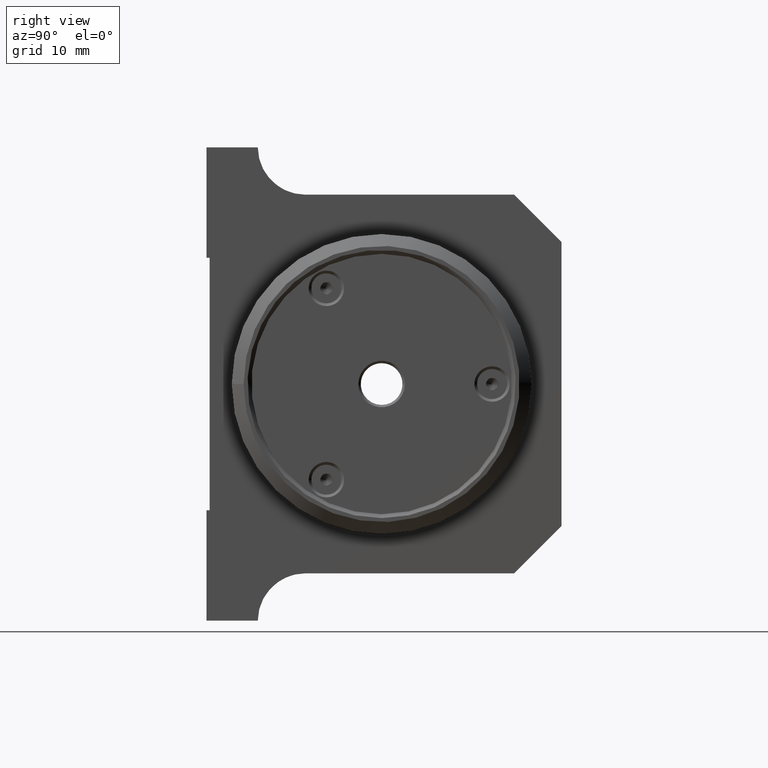
[diagram: clean part render]
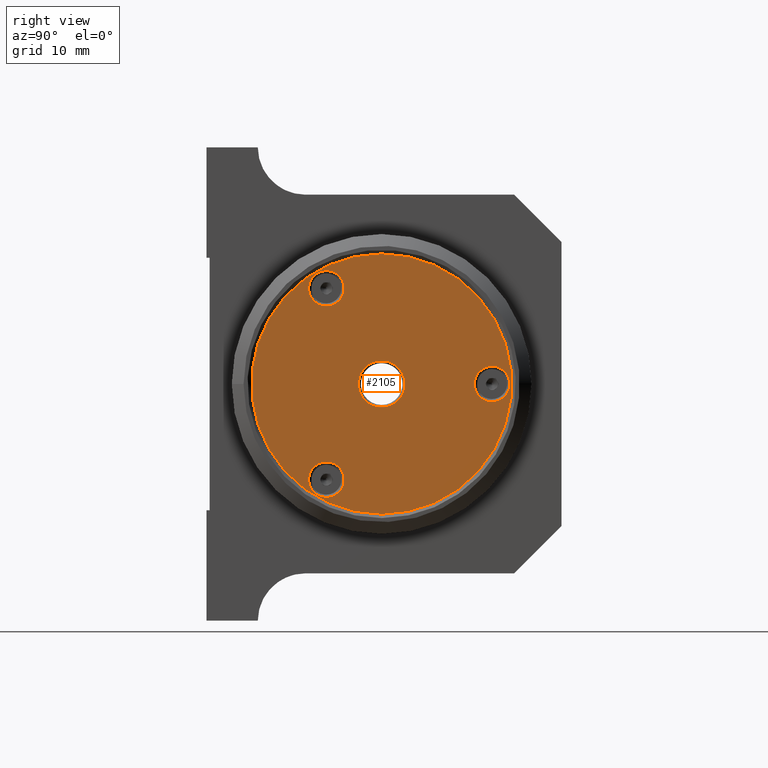
[diagram: same view with one face highlighted and labeled with its STEP entity id]
A machine part, right view. The second image highlights one B-rep face of the part: STEP entity #2105.
In plain terms, the highlighted planar face has unit normal (1, 0, 0).
Its self-contained STEP definition (entity closure, byte-faithful):
#98 = VERTEX_POINT ( 'NONE', #6306 ) ;
#122 = AXIS2_PLACEMENT_3D ( 'NONE', #2369, #6534, #4945 ) ;
#155 = FACE_OUTER_BOUND ( 'NONE', #3885, .T. ) ;
#201 = CARTESIAN_POINT ( 'NONE',  ( 27.24999999997589839, -7.000000000000000000, 12.12435565298000029 ) ) ;
#308 = FACE_BOUND ( 'NONE', #5610, .T. ) ;
#338 = CARTESIAN_POINT ( 'NONE',  ( 27.25000000000000000, 0.000000000000000000, 0.000000000000000000 ) ) ;
#501 = CARTESIAN_POINT ( 'NONE',  ( 27.24999999998089706, -1.020107270019444665E-30, 0.000000000000000000 ) ) ;
#528 = DIRECTION ( 'NONE',  ( 0.000000000000000000, 0.000000000000000000, -1.000000000000000000 ) ) ;
#597 = CIRCLE ( 'NONE', #3643, 2.250000000003636202 ) ;
#1134 = EDGE_CURVE ( 'NONE', #6444, #6444, #5363, .T. ) ;
#1353 = FACE_BOUND ( 'NONE', #1647, .T. ) ;
#1393 = CARTESIAN_POINT ( 'NONE',  ( 27.25000000004774492, 14.00000000000000000, -2.250000000003636202 ) ) ;
#1605 = EDGE_CURVE ( 'NONE', #5332, #5332, #5802, .T. ) ;
#1647 = EDGE_LOOP ( 'NONE', ( #6108 ) ) ;
#1754 = DIRECTION ( 'NONE',  ( 0.000000000000000000, 0.000000000000000000, -1.000000000000000000 ) ) ;
#1776 = AXIS2_PLACEMENT_3D ( 'NONE', #201, #1840, #6341 ) ;
#1784 = DIRECTION ( 'NONE',  ( 1.000000000000000000, 0.000000000000000000, 0.000000000000000000 ) ) ;
#1787 = EDGE_LOOP ( 'NONE', ( #4661 ) ) ;
#1840 = DIRECTION ( 'NONE',  ( -1.000000000000000000, -0.000000000000000000, 7.709882115422870245E-16 ) ) ;
#2105 = ADVANCED_FACE ( 'NONE', ( #4606, #308, #1353, #2236, #155 ), #2425, .T. ) ;
#2236 = FACE_BOUND ( 'NONE', #1787, .T. ) ;
#2369 = CARTESIAN_POINT ( 'NONE',  ( 27.24999999997589839, -7.000000000000000000, -12.12435565298000029 ) ) ;
#2425 = PLANE ( 'NONE',  #5280 ) ;
#2572 = CARTESIAN_POINT ( 'NONE',  ( 27.25000000004774492, 14.00000000000000000, 0.000000000000000000 ) ) ;
#2763 = DIRECTION ( 'NONE',  ( 1.000000000000000000, 0.000000000000000000, 0.000000000000000000 ) ) ;
#2844 = EDGE_CURVE ( 'NONE', #3943, #3943, #4635, .T. ) ;
#3025 = ORIENTED_EDGE ( 'NONE', *, *, #1134, .T. ) ;
#3033 = EDGE_LOOP ( 'NONE', ( #4583 ) ) ;
#3333 = AXIS2_PLACEMENT_3D ( 'NONE', #338, #1784, #1754 ) ;
#3393 = DIRECTION ( 'NONE',  ( 0.000000000000000000, 0.000000000000000000, -1.000000000000000000 ) ) ;
#3579 = DIRECTION ( 'NONE',  ( -1.000000000000000000, -5.880518043056004854E-16, 0.000000000000000000 ) ) ;
#3643 = AXIS2_PLACEMENT_3D ( 'NONE', #2572, #4584, #528 ) ;
#3885 = EDGE_LOOP ( 'NONE', ( #3025 ) ) ;
#3943 = VERTEX_POINT ( 'NONE', #5504 ) ;
#4583 = ORIENTED_EDGE ( 'NONE', *, *, #1605, .T. ) ;
#4584 = DIRECTION ( 'NONE',  ( -1.000000000000000000, 0.000000000000000000, -0.000000000000000000 ) ) ;
#4606 = FACE_BOUND ( 'NONE', #3033, .T. ) ;
#4635 = CIRCLE ( 'NONE', #6251, 2.949950095000984263 ) ;
#4661 = ORIENTED_EDGE ( 'NONE', *, *, #2844, .T. ) ;
#4805 = EDGE_CURVE ( 'NONE', #98, #98, #5735, .T. ) ;
#4945 = DIRECTION ( 'NONE',  ( 0.000000000000000000, 0.000000000000000000, -1.000000000000000000 ) ) ;
#4958 = CARTESIAN_POINT ( 'NONE',  ( 27.25000000000000000, 0.000000000000000000, -16.50000000000000000 ) ) ;
#5089 = EDGE_CURVE ( 'NONE', #6502, #6502, #597, .T. ) ;
#5280 = AXIS2_PLACEMENT_3D ( 'NONE', #5318, #2763, #3393 ) ;
#5318 = CARTESIAN_POINT ( 'NONE',  ( 27.25000000000000000, 0.000000000000000000, 0.000000000000000000 ) ) ;
#5332 = VERTEX_POINT ( 'NONE', #5871 ) ;
#5363 = CIRCLE ( 'NONE', #3333, 16.50000000000000000 ) ;
#5504 = CARTESIAN_POINT ( 'NONE',  ( 27.24999999998089706, 2.949950095000984263, 0.000000000000000000 ) ) ;
#5610 = EDGE_LOOP ( 'NONE', ( #5791 ) ) ;
#5632 = DIRECTION ( 'NONE',  ( 0.000000000000000000, 1.000000000000000000, 0.000000000000000000 ) ) ;
#5735 = CIRCLE ( 'NONE', #1776, 2.250000000003637979 ) ;
#5791 = ORIENTED_EDGE ( 'NONE', *, *, #4805, .T. ) ;
#5802 = CIRCLE ( 'NONE', #122, 2.250000000003637979 ) ;
#5871 = CARTESIAN_POINT ( 'NONE',  ( 27.24999999997589839, -7.000000000000000000, -14.37435565298363827 ) ) ;
#6108 = ORIENTED_EDGE ( 'NONE', *, *, #5089, .T. ) ;
#6251 = AXIS2_PLACEMENT_3D ( 'NONE', #501, #3579, #5632 ) ;
#6306 = CARTESIAN_POINT ( 'NONE',  ( 27.24999999997589839, -7.000000000000000000, 9.874355652976362308 ) ) ;
#6341 = DIRECTION ( 'NONE',  ( 0.000000000000000000, 0.000000000000000000, -1.000000000000000000 ) ) ;
#6444 = VERTEX_POINT ( 'NONE', #4958 ) ;
#6502 = VERTEX_POINT ( 'NONE', #1393 ) ;
#6534 = DIRECTION ( 'NONE',  ( -1.000000000000000000, -0.000000000000000000, 7.709882115422867286E-16 ) ) ;